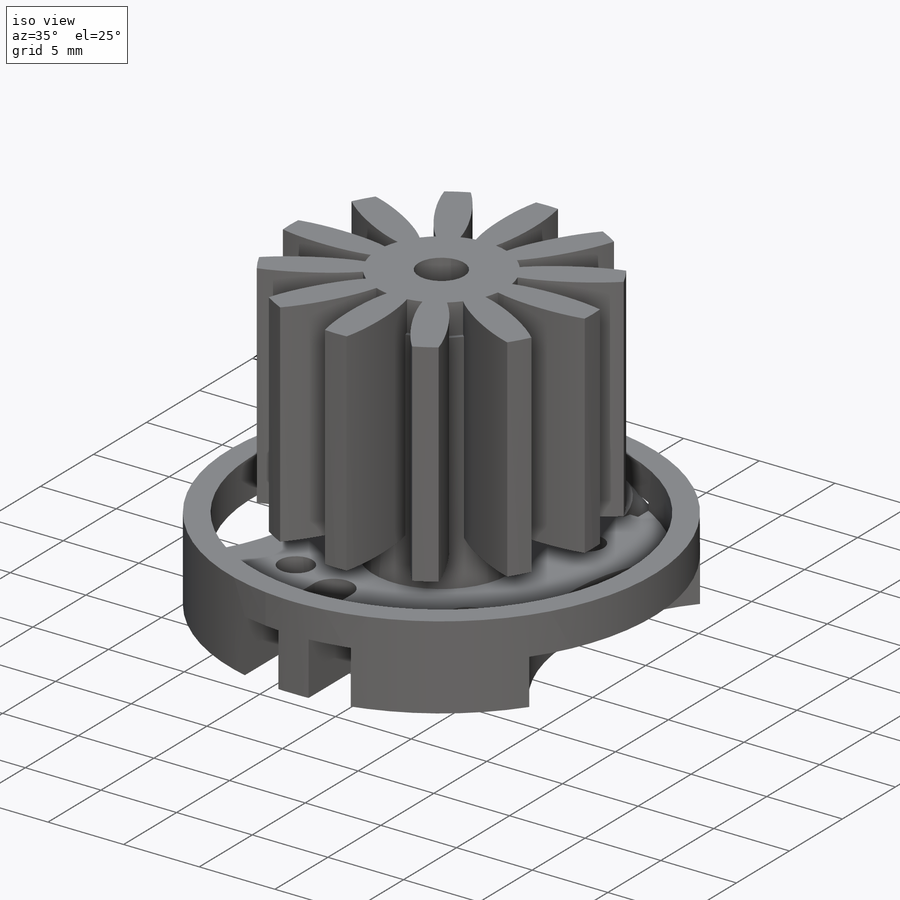
[diagram: iso view]
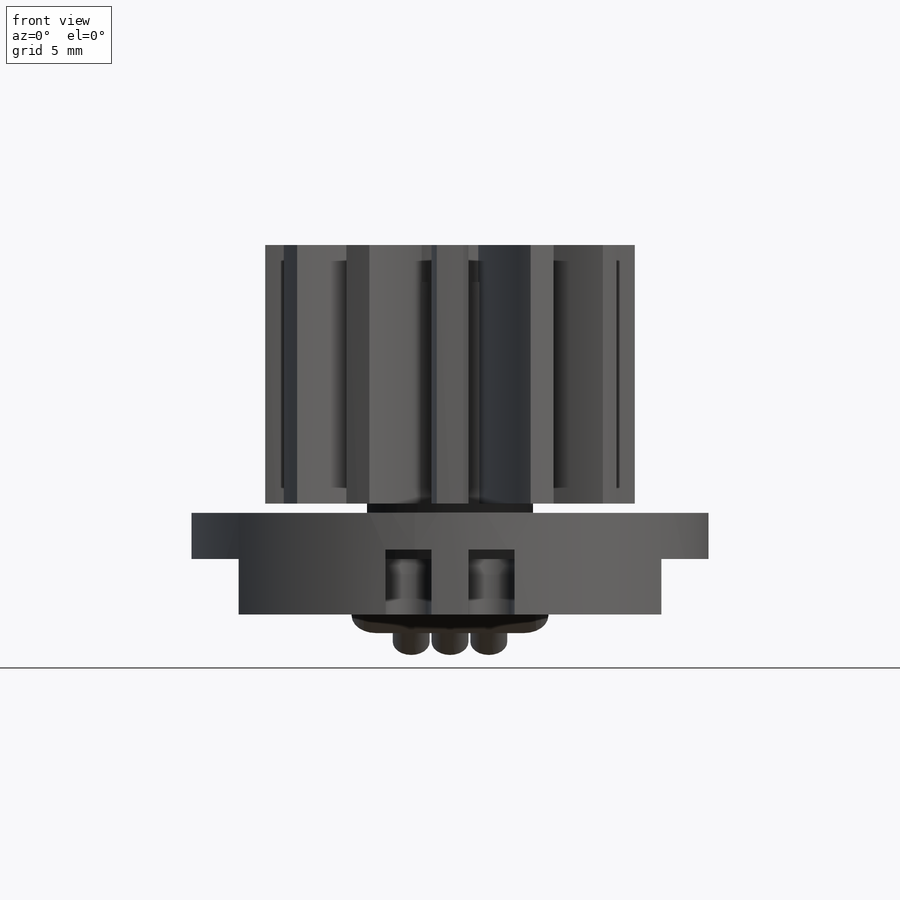
[diagram: front view]
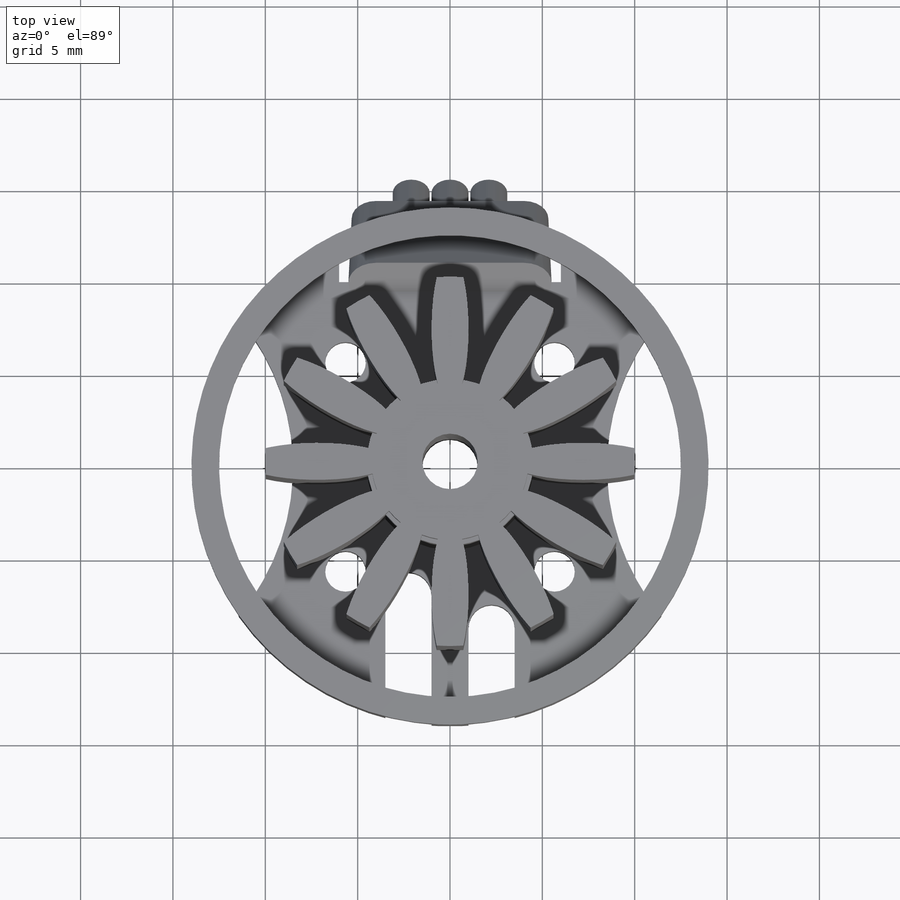
[diagram: top view]
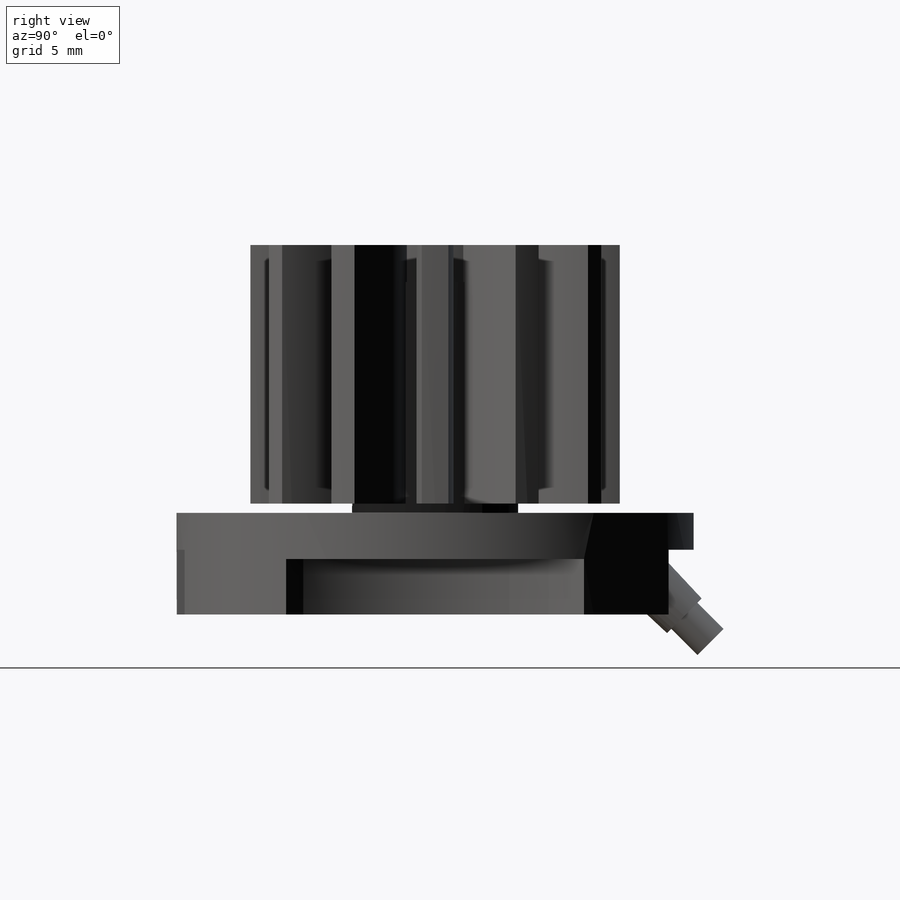
[diagram: right view]
SOLIDWORKS PART (.sldprt)
format: sldprt  version: not decoded by parser v0  size: 560,640 bytes
history: native  units: mm
features: sketch x12, extrude x5, cut_extrude x5, plane x2, material x1, hole x1 (+11 scaffold rows collapsed)
feature tree (37):
  scaffold x11  (default folders/planes/origin — collapsed)
  material  "Material <not specified>"
  sketch  "Sketch1"  dims[D1=28.0mm D2=25.0mm]
  extrude  "Base"  Depth=5.5mm
  sketch  "Sketch2"  dims[D1=25.0mm]
  cut_extrude  "BaseCut"  Depth=2.5mm
  sketch  "Sketch5"  dims[c1.D1=28.0mm c1.D2=9.0mm c2.D1=9.5mm]
  extrude  "OuterShaft"  Depth=15mm
  sketch  "Sketch6"  dims[D1=25.0mm D2=21.0mm]
  cut_extrude  "LightWeight1"  Depth=3mm
  plane  "PlaneForInductors"  Offset=3mm
  sketch  "Sketch4"  dims[D1=20.0mm D2=8.5mm D3=2.0mm D4=8.0mm D5=~0.998633mm]
  extrude  "Inductors"  Depth=14mm
  sketch  "Sketch7"  dims[c1.D10=1.25mm c1.D11=1.25mm c1.D4=1.25mm c1.D1=10.0mm c1.D2=5.0mm c1.D3=12.0mm c2.D4=6.0mm c2.D5=2.0mm c2.D6=2.5mm c2.D7=2.5mm c2.D8=7.0mm c2.D9=7.0mm c2.D10=7.0mm c2.D11=8.0mm c2.D12=1.0mm c2.D2=12.0mm c2.D3=8.0mm c3.D4=5.25mm c3.D1=2.0mm]
  cut_extrude  "LighWeigth2"  Depth=3.5mm
  sketch  "Sketch8"  dims[D1=7.5mm D2=3.0mm]
  cut_extrude  "LightWeightForShaft"  Depth=0.5mm
  sketch  "Sketch9"  dims[D1=3.0mm]
  cut_extrude  "HoleForShaft"  [1 undecoded]
  hole  "Ø2.0 ScrewHoles"  Diameter=2.2mm Depth=4mm
  sketch  "Sketch11"  dims[c1.D1=16.0mm c1.D2=16.0mm c2.D1=6.0mm c2.D2=6.0mm c2.D4=~5.656854mm c3.D1=8.0mm c3.D2=14.0mm c4.D2=45.0deg c4.D3=4.0]
  sketch  "Sketch10"  dims[hole-wizard template sketch: 47 standard entries collapsed; hole parameters kept: c15.Hole Depth=4.0mm c15.D3=~14.816244mm c15.Drill Angle=118.0deg]
  plane  "PlaneForCables"
  sketch  "Sketch12"  dims[c1.D3=1.0mm c1.D1=3.0mm c1.D2=0.3mm c2.D3=8.0mm]
  extrude  "cableOut"  Depth=5mm
  sketch  "Sketch13"  dims[D1=2.0mm D3=2.1mm D2=3.0]
  extrude  "Boss-Extrude2"  Depth=2mm
decode coverage: 22 of 23 modeling features carry decoded parameters
note: ~ marks probable driven/reference dimensions
note: 1 parameter value undecoded
note: suppression state not decoded; provenance and decode notes live in map.json
